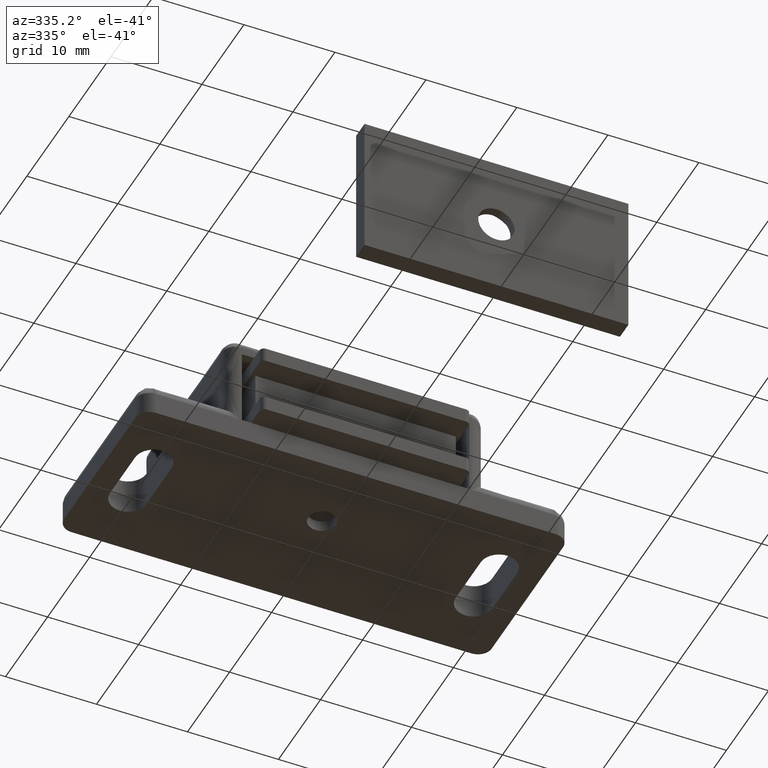
[diagram: clean part render]
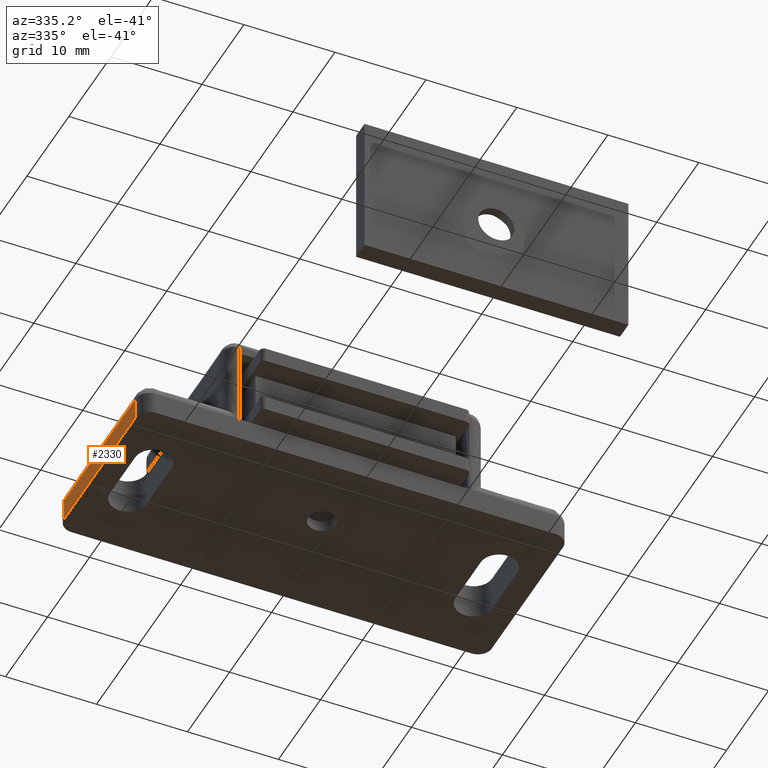
[diagram: same view with one face highlighted and labeled with its STEP entity id]
A machine part, auxiliary view. The second image highlights one B-rep face of the part: STEP entity #2330.
In plain terms, the highlighted face is a freeform B-spline surface patch.
Its self-contained STEP definition (entity closure, byte-faithful):
#1182=CARTESIAN_POINT('',(-23.500000000000000,-1.500000000000000,2.499999999999901));
#1183=VERTEX_POINT('',#1182);
#1206=CARTESIAN_POINT('',(-23.500000000000000,-1.500000000000000,0.0));
#1207=VERTEX_POINT('',#1206);
#1221=CARTESIAN_POINT('',(-23.500000000000000,-1.500000000000000,2.499999999999901));
#1222=CARTESIAN_POINT('',(-23.500000000000000,-1.500000000000000,0.0));
#1223=QUASI_UNIFORM_CURVE('',1,(#1221,#1222),.UNSPECIFIED.,.F.,.U.);
#1224=EDGE_CURVE('',#1183,#1207,#1223,.T.);
#1299=CARTESIAN_POINT('',(-23.500000000000000,-18.500000000000000,2.499999999999901));
#1300=VERTEX_POINT('',#1299);
#1322=CARTESIAN_POINT('',(-23.500000000000000,-18.500000000000000,2.499999999999901));
#1323=CARTESIAN_POINT('',(-23.500000000000000,-1.500000000000000,2.499999999999901));
#1324=QUASI_UNIFORM_CURVE('',1,(#1322,#1323),.UNSPECIFIED.,.F.,.U.);
#1325=EDGE_CURVE('',#1300,#1183,#1324,.T.);
#1402=CARTESIAN_POINT('',(-23.500000000000000,-18.500000000000000,0.0));
#1403=VERTEX_POINT('',#1402);
#1423=CARTESIAN_POINT('',(-23.500000000000000,-18.500000000000000,0.0));
#1424=CARTESIAN_POINT('',(-23.500000000000000,-18.500000000000000,2.499999999999901));
#1425=QUASI_UNIFORM_CURVE('',1,(#1423,#1424),.UNSPECIFIED.,.F.,.U.);
#1426=EDGE_CURVE('',#1403,#1300,#1425,.T.);
#2315=CARTESIAN_POINT('',(-23.500000000000000,-19.349149967050700,-0.124874995154510));
#2316=CARTESIAN_POINT('',(-23.500000000000000,-0.650849576973767,-0.124874995154510));
#2317=CARTESIAN_POINT('',(-23.500000000000000,-19.349149967050700,2.624875062209636));
#2318=CARTESIAN_POINT('',(-23.500000000000000,-0.650849576973767,2.624875062209636));
#2319=B_SPLINE_SURFACE_WITH_KNOTS('',1,1,((#2315,#2317),(#2316,#2318)),.UNSPECIFIED.,.F.,.F.,.U.,(2,2),(2,2),(0.0,18.698300390076941),(0.0,2.749750057364146),.UNSPECIFIED.);
#2320=ORIENTED_EDGE('',*,*,#1325,.T.);
#2321=ORIENTED_EDGE('',*,*,#1224,.T.);
#2322=CARTESIAN_POINT('',(-23.500000000000000,-1.500000000000000,0.0));
#2323=CARTESIAN_POINT('',(-23.500000000000000,-18.500000000000000,0.0));
#2324=QUASI_UNIFORM_CURVE('',1,(#2322,#2323),.UNSPECIFIED.,.F.,.U.);
#2325=EDGE_CURVE('',#1207,#1403,#2324,.T.);
#2326=ORIENTED_EDGE('',*,*,#2325,.T.);
#2327=ORIENTED_EDGE('',*,*,#1426,.T.);
#2328=EDGE_LOOP('',(#2320,#2321,#2326,#2327));
#2329=FACE_OUTER_BOUND('',#2328,.T.);
#2330=ADVANCED_FACE('',(#2329),#2319,.F.);